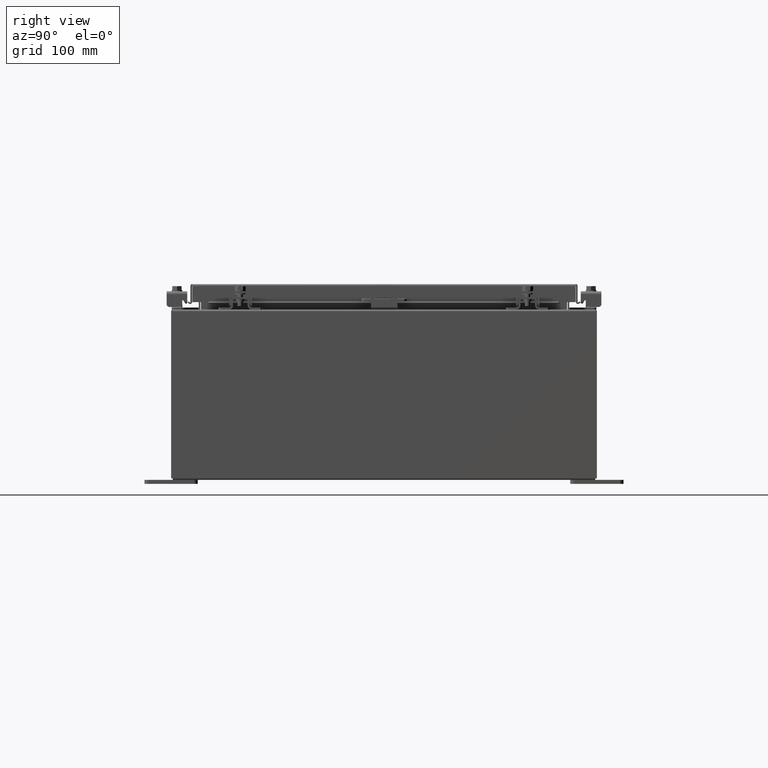
[diagram: clean part render]
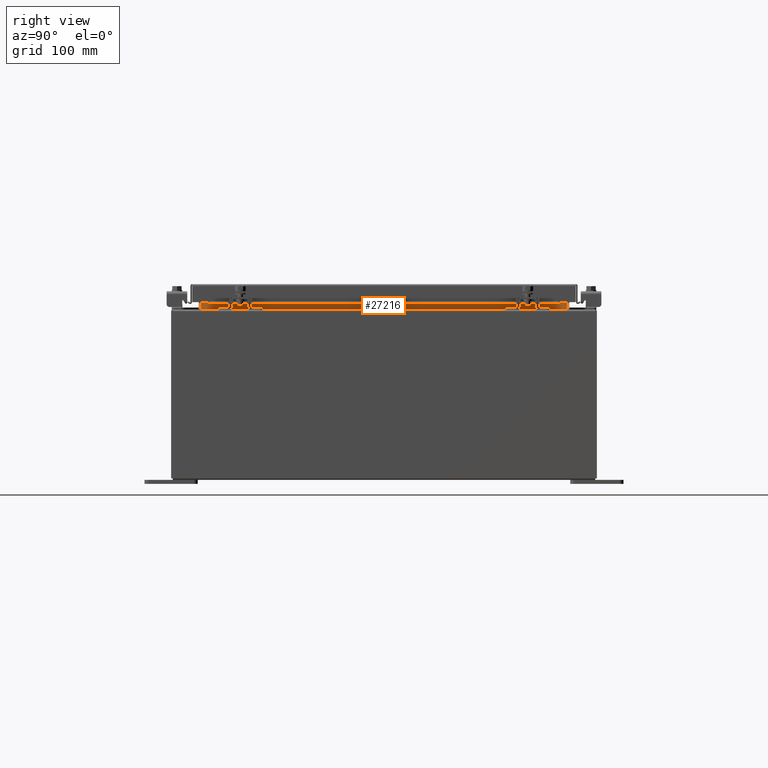
[diagram: same view with one face highlighted and labeled with its STEP entity id]
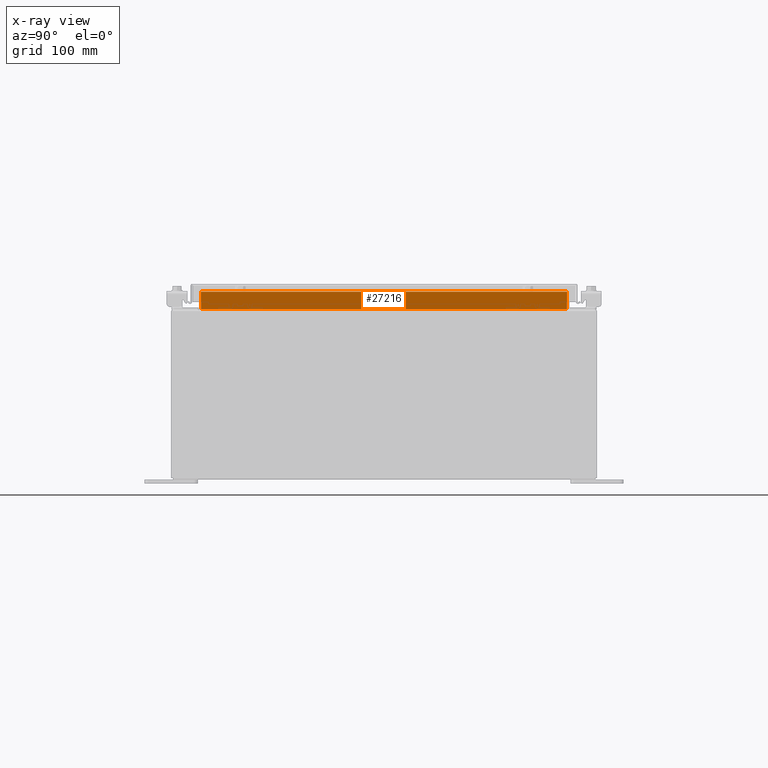
[diagram: x-ray of the same camera — body ghosted, the highlighted face saturated]
A machine part, right view. The second image highlights one B-rep face of the part: STEP entity #27216.
The next image is the same camera in x-ray: the body ghosted, the highlighted face saturated — about 0% of this face is hidden behind the body in this view.
In plain terms, the highlighted planar face has unit normal (1, 0, -0).
Its self-contained STEP definition (entity closure, byte-faithful):
#1448 = VECTOR ( 'NONE', #9215, 39.37007874015748100 ) ;
#1786 = CARTESIAN_POINT ( 'NONE',  ( 10.69970000000003200, -8.593750000000001800, 8.762900000000010800 ) ) ;
#2339 = CARTESIAN_POINT ( 'NONE',  ( 10.69970000000002800, 8.593749999999996400, 7.938300000000011500 ) ) ;
#2441 = EDGE_CURVE ( 'NONE', #6736, #9056, #25665, .T. ) ;
#2822 = LINE ( 'NONE', #7403, #7411 ) ;
#3753 = LINE ( 'NONE', #5642, #9059 ) ;
#5642 = CARTESIAN_POINT ( 'NONE',  ( 10.69970000000003200, -8.593750000000001800, 8.762900000000010800 ) ) ;
#5723 = AXIS2_PLACEMENT_3D ( 'NONE', #22916, #27493, #13833 ) ;
#6736 = VERTEX_POINT ( 'NONE', #2339 ) ;
#7209 = VERTEX_POINT ( 'NONE', #1786 ) ;
#7403 = CARTESIAN_POINT ( 'NONE',  ( 10.69970000000003200, -8.593750000000001800, 8.850600000000010700 ) ) ;
#7411 = VECTOR ( 'NONE', #23341, 39.37007874015748100 ) ;
#8457 = ORIENTED_EDGE ( 'NONE', *, *, #9455, .F. ) ;
#9008 = CARTESIAN_POINT ( 'NONE',  ( 10.69970000000002800, 8.593749999999998200, 7.938300000000008800 ) ) ;
#9056 = VERTEX_POINT ( 'NONE', #19369 ) ;
#9059 = VECTOR ( 'NONE', #19306, 39.37007874015748100 ) ;
#9215 = DIRECTION ( 'NONE',  ( 2.543102132283823400E-016, -1.000000000000000000, 3.814653198425735100E-016 ) ) ;
#9455 = EDGE_CURVE ( 'NONE', #9056, #7209, #2822, .T. ) ;
#11440 = EDGE_CURVE ( 'NONE', #12320, #6736, #17032, .T. ) ;
#12320 = VERTEX_POINT ( 'NONE', #26939 ) ;
#13451 = ORIENTED_EDGE ( 'NONE', *, *, #2441, .F. ) ;
#13833 = DIRECTION ( 'NONE',  ( -2.361913319930196000E-015, 0.0000000000000000000, -1.000000000000000000 ) ) ;
#14615 = EDGE_CURVE ( 'NONE', #7209, #12320, #3753, .T. ) ;
#15446 = EDGE_LOOP ( 'NONE', ( #18712, #20043, #8457, #13451 ) ) ;
#16725 = CARTESIAN_POINT ( 'NONE',  ( 10.69970000000002800, 8.593749999999998200, 7.925300000000008900 ) ) ;
#17032 = LINE ( 'NONE', #16725, #22394 ) ;
#18670 = FACE_OUTER_BOUND ( 'NONE', #15446, .T. ) ;
#18712 = ORIENTED_EDGE ( 'NONE', *, *, #11440, .F. ) ;
#19014 = DIRECTION ( 'NONE',  ( -2.361913319930196000E-015, -0.0000000000000000000, -1.000000000000000000 ) ) ;
#19306 = DIRECTION ( 'NONE',  ( 0.0000000000000000000, 1.000000000000000000, 0.0000000000000000000 ) ) ;
#19369 = CARTESIAN_POINT ( 'NONE',  ( 10.69970000000002800, -8.593750000000003600, 7.938300000000011500 ) ) ;
#20043 = ORIENTED_EDGE ( 'NONE', *, *, #14615, .F. ) ;
#22394 = VECTOR ( 'NONE', #19014, 39.37007874015748100 ) ;
#22916 = CARTESIAN_POINT ( 'NONE',  ( 10.69970000000000900, 1.360521494239859100E-015, -2.527176394925713800E-014 ) ) ;
#23341 = DIRECTION ( 'NONE',  ( 4.723826639860397600E-015, -0.0000000000000000000, 1.000000000000000000 ) ) ;
#25208 = PLANE ( 'NONE',  #5723 ) ;
#25665 = LINE ( 'NONE', #9008, #1448 ) ;
#26939 = CARTESIAN_POINT ( 'NONE',  ( 10.69970000000003200, 8.593749999999998200, 8.762900000000010800 ) ) ;
#27216 = ADVANCED_FACE ( 'NONE', ( #18670 ), #25208, .T. ) ;
#27493 = DIRECTION ( 'NONE',  ( 1.000000000000000000, 1.271551066141908700E-016, -2.361913319930196000E-015 ) ) ;